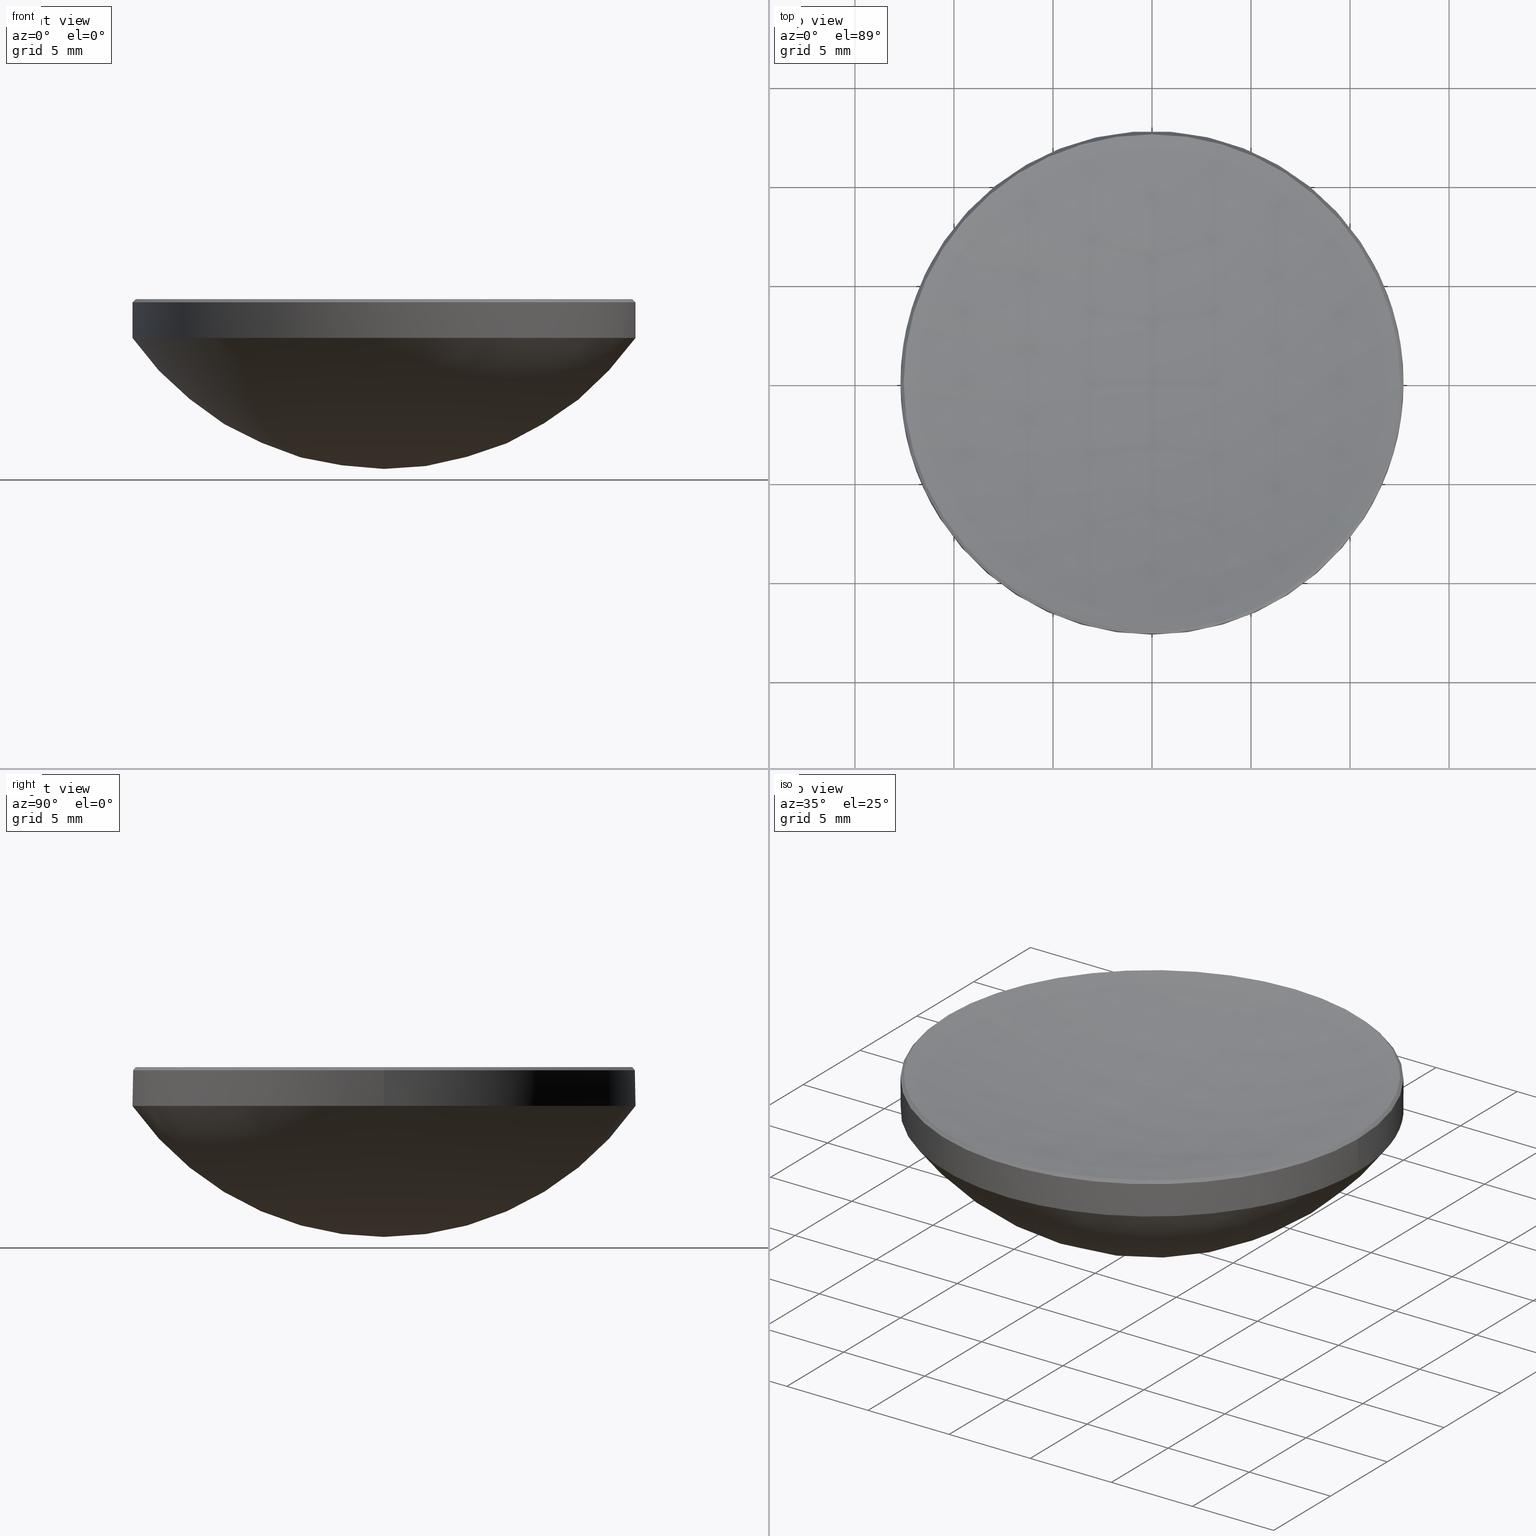
[diagram: canonical four-view strip — front | top / right | iso, engineering-drawing reading convention]
A machine part, canonical four-view strip (front | top / right | iso — engineering-drawing reading convention). The complete STEP part file that produces these views, byte-faithful:
ISO-10303-21;
HEADER;
FILE_DESCRIPTION (( 'STEP AP214' ),
    '1' );
FILE_NAME ('GLM5-025B-050.STEP',
    '2024-08-09T03:08:16',
    ( 'Windows User' ),
    ( 'P R C' ),
    'SwSTEP 2.0',
    'SolidWorks 2022',
    '' );
FILE_SCHEMA (( 'AUTOMOTIVE_DESIGN' ));
ENDSEC;

DATA;
#1 =( NAMED_UNIT ( * ) SI_UNIT ( $, .STERADIAN. ) SOLID_ANGLE_UNIT ( ) );
#2 = EDGE_CURVE ( 'NONE', #99, #150, #180, .T. ) ;
#3 = CARTESIAN_POINT ( 'NONE',  ( -12.69999999999999751, 0.000000000000000000, 10.00000000000000000 ) ) ;
#4 = CIRCLE ( 'NONE', #130, 12.69999999999999751 ) ;
#5 = AXIS2_PLACEMENT_3D ( 'NONE', #217, #23, #215 ) ;
#6 = EDGE_CURVE ( 'NONE', #255, #78, #90, .T. ) ;
#7 = APPLICATION_CONTEXT ( 'automotive_design' ) ;
#8 = ADVANCED_FACE ( 'NONE', ( #144 ), #80, .T. ) ;
#9 =( NAMED_UNIT ( * ) PLANE_ANGLE_UNIT ( ) SI_UNIT ( $, .RADIAN. ) );
#10 = CARTESIAN_POINT ( 'NONE',  ( 0.000000000000000000, 0.000000000000000000, 11.96196640381658227 ) ) ;
#11 = VERTEX_POINT ( 'NONE', #165 ) ;
#12 = LINE ( 'NONE', #211, #276 ) ;
#13 = FACE_OUTER_BOUND ( 'NONE', #146, .T. ) ;
#14 = ORIENTED_EDGE ( 'NONE', *, *, #119, .F. ) ;
#15 = CIRCLE ( 'NONE', #242, 15.49999999999999645 ) ;
#16 = SPHERICAL_SURFACE ( 'NONE', #224, 15.49999999999999645 ) ;
#17 = ORIENTED_EDGE ( 'NONE', *, *, #2, .F. ) ;
#18 = UNCERTAINTY_MEASURE_WITH_UNIT (LENGTH_MEASURE( 1.000000000000000082E-05 ), #63, 'distance_accuracy_value', 'NONE');
#19 = CARTESIAN_POINT ( 'NONE',  ( 0.000000000000000000, 0.000000000000000000, 11.79999999999999716 ) ) ;
#20 = DIRECTION ( 'NONE',  ( -0.000000000000000000, -0.000000000000000000, 1.000000000000000000 ) ) ;
#21 = ORIENTED_EDGE ( 'NONE', *, *, #257, .F. ) ;
#22 = EDGE_CURVE ( 'NONE', #150, #255, #269, .T. ) ;
#23 = DIRECTION ( 'NONE',  ( -0.000000000000000000, -0.000000000000000000, 1.000000000000000000 ) ) ;
#24 = VERTEX_POINT ( 'NONE', #118 ) ;
#25 = FILL_AREA_STYLE ('',( #86 ) ) ;
#26 = APPLICATION_CONTEXT ( 'automotive_design' ) ;
#27 = CARTESIAN_POINT ( 'NONE',  ( 0.000000000000000000, 0.000000000000000000, 10.00000000000000000 ) ) ;
#28 = AXIS2_PLACEMENT_3D ( 'NONE', #182, #49, #72 ) ;
#29 = AXIS2_PLACEMENT_3D ( 'NONE', #234, #82, #127 ) ;
#30 = CARTESIAN_POINT ( 'NONE',  ( 0.000000000000000000, 0.000000000000000000, 20.00000000000000000 ) ) ;
#31 = AXIS2_PLACEMENT_3D ( 'NONE', #19, #138, #223 ) ;
#32 = FACE_OUTER_BOUND ( 'NONE', #175, .T. ) ;
#33 = CARTESIAN_POINT ( 'NONE',  ( -12.69999999999999929, 0.000000000000000000, 11.79999999999999716 ) ) ;
#34 = DIRECTION ( 'NONE',  ( 0.000000000000000000, 1.000000000000000000, 0.000000000000000000 ) ) ;
#35 = ORIENTED_EDGE ( 'NONE', *, *, #213, .T. ) ;
#36 = UNCERTAINTY_MEASURE_WITH_UNIT (LENGTH_MEASURE( 1.000000000000000082E-05 ), #219, 'distance_accuracy_value', 'NONE');
#37 = PRODUCT_DEFINITION_SHAPE ( 'NONE', 'NONE',  #38 ) ;
#38 = PRODUCT_DEFINITION ( 'δ֪', '', #122, #126 ) ;
#39 = CARTESIAN_POINT ( 'NONE',  ( 0.000000000000000000, 0.000000000000000000, 11.96196640381658227 ) ) ;
#40 = ORIENTED_EDGE ( 'NONE', *, *, #280, .F. ) ;
#41 = DIRECTION ( 'NONE',  ( -1.000000000000000000, 0.000000000000000000, 0.000000000000000000 ) ) ;
#42 = ORIENTED_EDGE ( 'NONE', *, *, #119, .T. ) ;
#43 = VECTOR ( 'NONE', #75, 1000.000000000000000 ) ;
#44 = UNCERTAINTY_MEASURE_WITH_UNIT (LENGTH_MEASURE( 1.000000000000000082E-05 ), #113, 'distance_accuracy_value', 'NONE');
#45 =( NAMED_UNIT ( * ) PLANE_ANGLE_UNIT ( ) SI_UNIT ( $, .RADIAN. ) );
#46 = EDGE_CURVE ( 'NONE', #189, #244, #4, .T. ) ;
#47 = STYLED_ITEM ( 'NONE', ( #261 ), #241 ) ;
#48 = APPLICATION_PROTOCOL_DEFINITION ( 'draft international standard', 'automotive_design', 1998, #7 ) ;
#49 = DIRECTION ( 'NONE',  ( 0.000000000000000000, 0.000000000000000000, 1.000000000000000000 ) ) ;
#50 = DIRECTION ( 'NONE',  ( -1.000000000000000000, 0.000000000000000000, 0.000000000000000000 ) ) ;
#51 = DIRECTION ( 'NONE',  ( -0.000000000000000000, -0.000000000000000000, -1.000000000000000000 ) ) ;
#52 = CARTESIAN_POINT ( 'NONE',  ( -12.69999999999999929, 0.000000000000000000, 20.00000000000000000 ) ) ;
#53 = CARTESIAN_POINT ( 'NONE',  ( 0.000000000000000000, 0.000000000000000000, 65.71917720888880865 ) ) ;
#54 = PRESENTATION_STYLE_ASSIGNMENT (( #76 ) ) ;
#55 = EDGE_CURVE ( 'NONE', #230, #57, #231, .T. ) ;
#56 = DIRECTION ( 'NONE',  ( -0.000000000000000000, -0.000000000000000000, 1.000000000000000000 ) ) ;
#57 = VERTEX_POINT ( 'NONE', #250 ) ;
#58 = FACE_OUTER_BOUND ( 'NONE', #169, .T. ) ;
#59 = ORIENTED_EDGE ( 'NONE', *, *, #2, .T. ) ;
#60 = CARTESIAN_POINT ( 'NONE',  ( 0.000000000000000000, 0.000000000000000000, 11.96196640381658227 ) ) ;
#61 = EDGE_LOOP ( 'NONE', ( #81, #139, #166, #129, #253 ) ) ;
#62 = DIRECTION ( 'NONE',  ( -1.000000000000000000, 1.224646799147353207E-16, 0.000000000000000000 ) ) ;
#63 =( LENGTH_UNIT ( ) NAMED_UNIT ( * ) SI_UNIT ( .MILLI., .METRE. ) );
#64 = ORIENTED_EDGE ( 'NONE', *, *, #131, .T. ) ;
#65 = AXIS2_PLACEMENT_3D ( 'NONE', #206, #181, #183 ) ;
#66 = CLOSED_SHELL ( 'NONE', ( #200, #107, #158, #8, #69, #227, #70, #245 ) ) ;
#67 = CARTESIAN_POINT ( 'NONE',  ( 0.000000000000000000, 0.000000000000000000, 18.88594395660922487 ) ) ;
#68 = CIRCLE ( 'NONE', #220, 12.53803359618341418 ) ;
#69 = ADVANCED_FACE ( 'NONE', ( #13 ), #161, .T. ) ;
#70 = ADVANCED_FACE ( 'NONE', ( #32 ), #249, .F. ) ;
#71 = VECTOR ( 'NONE', #51, 1000.000000000000000 ) ;
#72 = DIRECTION ( 'NONE',  ( 1.000000000000000000, 0.000000000000000000, 0.000000000000000000 ) ) ;
#73 = DIRECTION ( 'NONE',  ( -1.000000000000000000, 0.000000000000000000, 0.000000000000000000 ) ) ;
#74 = MECHANICAL_DESIGN_GEOMETRIC_PRESENTATION_REPRESENTATION (  '', ( #204 ), #147 ) ;
#75 = DIRECTION ( 'NONE',  ( -0.000000000000000000, -0.000000000000000000, -1.000000000000000000 ) ) ;
#76 = SURFACE_STYLE_USAGE ( .BOTH. , #185 ) ;
#77 = CARTESIAN_POINT ( 'NONE',  ( 12.69999999999999929, 1.555301434917138433E-15, 11.79999999999999716 ) ) ;
#78 = VERTEX_POINT ( 'NONE', #268 ) ;
#79 = CARTESIAN_POINT ( 'NONE',  ( 0.000000000000000000, 0.000000000000000000, 10.00000000000000000 ) ) ;
#80 = CYLINDRICAL_SURFACE ( 'NONE', #159, 12.69999999999999929 ) ;
#81 = ORIENTED_EDGE ( 'NONE', *, *, #239, .F. ) ;
#82 = DIRECTION ( 'NONE',  ( -1.000000000000000000, 0.000000000000000000, 0.000000000000000000 ) ) ;
#83 = ORIENTED_EDGE ( 'NONE', *, *, #114, .T. ) ;
#84 = DIRECTION ( 'NONE',  ( 0.7071067811865513475, 8.659560562354980929E-17, -0.7071067811865437980 ) ) ;
#85 = EDGE_LOOP ( 'NONE', ( #235, #42, #125, #282 ) ) ;
#86 = FILL_AREA_STYLE_COLOUR ( '', #133 ) ;
#87 = VERTEX_POINT ( 'NONE', #266 ) ;
#88 = DIRECTION ( 'NONE',  ( -1.224646799147353207E-16, -1.000000000000000000, 0.000000000000000000 ) ) ;
#89 = AXIS2_PLACEMENT_3D ( 'NONE', #132, #256, #153 ) ;
#90 = CIRCLE ( 'NONE', #222, 12.69999999999999751 ) ;
#91 = EDGE_CURVE ( 'NONE', #11, #87, #115, .T. ) ;
#92 = DIRECTION ( 'NONE',  ( 0.000000000000000000, 1.000000000000000000, 0.000000000000000000 ) ) ;
#93 = SPHERICAL_SURFACE ( 'NONE', #279, 55.19999999999998863 ) ;
#94 = COLOUR_RGB ( '',1.000000000000000000, 1.000000000000000000, 1.000000000000000000 ) ;
#95 = DIRECTION ( 'NONE',  ( -0.7071067811865513475, 0.000000000000000000, -0.7071067811865437980 ) ) ;
#96 = VECTOR ( 'NONE', #84, 1000.000000000000000 ) ;
#97 = DIRECTION ( 'NONE',  ( -1.000000000000000000, 0.000000000000000000, 0.000000000000000000 ) ) ;
#98 = DIRECTION ( 'NONE',  ( -0.000000000000000000, -0.000000000000000000, 1.000000000000000000 ) ) ;
#99 = VERTEX_POINT ( 'NONE', #77 ) ;
#100 = DIRECTION ( 'NONE',  ( 0.000000000000000000, 0.000000000000000000, -1.000000000000000000 ) ) ;
#101 = ORIENTED_EDGE ( 'NONE', *, *, #55, .T. ) ;
#102 = DIRECTION ( 'NONE',  ( 1.000000000000000000, 0.000000000000000000, 0.000000000000000000 ) ) ;
#103 = CONICAL_SURFACE ( 'NONE', #263, 12.53803359618341418, 0.7853981633974536081 ) ;
#104 = ORIENTED_EDGE ( 'NONE', *, *, #179, .F. ) ;
#105 = FACE_OUTER_BOUND ( 'NONE', #233, .T. ) ;
#106 = ORIENTED_EDGE ( 'NONE', *, *, #280, .T. ) ;
#107 = ADVANCED_FACE ( 'NONE', ( #225 ), #93, .F. ) ;
#108 =( NAMED_UNIT ( * ) SI_UNIT ( $, .STERADIAN. ) SOLID_ANGLE_UNIT ( ) );
#109 = CARTESIAN_POINT ( 'NONE',  ( 0.000000000000000000, 0.000000000000000000, 11.79999999999999716 ) ) ;
#110 = CIRCLE ( 'NONE', #248, 12.69999999999999751 ) ;
#111 = AXIS2_PLACEMENT_3D ( 'NONE', #112, #203, #229 ) ;
#112 = CARTESIAN_POINT ( 'NONE',  ( 0.000000000000000000, 0.000000000000000000, 11.96196640381658227 ) ) ;
#113 =( LENGTH_UNIT ( ) NAMED_UNIT ( * ) SI_UNIT ( .MILLI., .METRE. ) );
#114 = EDGE_CURVE ( 'NONE', #99, #189, #116, .T. ) ;
#115 = CIRCLE ( 'NONE', #111, 12.53803359618341418 ) ;
#116 = LINE ( 'NONE', #120, #43 ) ;
#117 = ADVANCED_BREP_SHAPE_REPRESENTATION ( 'GLM5-025B-050', ( #241, #28 ), #264 ) ;
#118 = CARTESIAN_POINT ( 'NONE',  ( 0.000000000000000000, 3.380025165646693876E-15, 10.51917720888882712 ) ) ;
#119 = EDGE_CURVE ( 'NONE', #24, #11, #270, .T. ) ;
#120 = CARTESIAN_POINT ( 'NONE',  ( 12.69999999999999929, 1.555301434917138433E-15, 20.00000000000000000 ) ) ;
#121 = ORIENTED_EDGE ( 'NONE', *, *, #265, .F. ) ;
#122 = PRODUCT_DEFINITION_FORMATION_WITH_SPECIFIED_SOURCE ( '�κ�', '', #193, .NOT_KNOWN. ) ;
#123 = ORIENTED_EDGE ( 'NONE', *, *, #170, .T. ) ;
#124 = DIRECTION ( 'NONE',  ( 0.000000000000000000, 0.000000000000000000, -1.000000000000000000 ) ) ;
#125 = ORIENTED_EDGE ( 'NONE', *, *, #91, .T. ) ;
#126 = PRODUCT_DEFINITION_CONTEXT ( 'detailed design', #26, 'design' ) ;
#127 = DIRECTION ( 'NONE',  ( 0.000000000000000000, 1.000000000000000000, 0.000000000000000000 ) ) ;
#128 = AXIS2_PLACEMENT_3D ( 'NONE', #39, #124, #281 ) ;
#129 = ORIENTED_EDGE ( 'NONE', *, *, #131, .F. ) ;
#130 = AXIS2_PLACEMENT_3D ( 'NONE', #186, #98, #226 ) ;
#131 = EDGE_CURVE ( 'NONE', #57, #150, #12, .T. ) ;
#132 = CARTESIAN_POINT ( 'NONE',  ( 0.000000000000000000, 0.000000000000000000, 65.71917720888880865 ) ) ;
#133 = COLOUR_RGB ( '',1.000000000000000000, 1.000000000000000000, 1.000000000000000000 ) ;
#134 =( GEOMETRIC_REPRESENTATION_CONTEXT ( 3 ) GLOBAL_UNCERTAINTY_ASSIGNED_CONTEXT ( ( #18 ) ) GLOBAL_UNIT_ASSIGNED_CONTEXT ( ( #63, #45, #1 ) ) REPRESENTATION_CONTEXT ( 'NONE', 'WORKASPACE' ) );
#135 = PRODUCT_CONTEXT ( 'NONE', #7, 'mechanical' ) ;
#136 = APPLICATION_PROTOCOL_DEFINITION ( 'draft international standard', 'automotive_design', 1998, #26 ) ;
#137 = EDGE_CURVE ( 'NONE', #78, #189, #155, .T. ) ;
#138 = DIRECTION ( 'NONE',  ( 0.000000000000000000, 0.000000000000000000, -1.000000000000000000 ) ) ;
#139 = ORIENTED_EDGE ( 'NONE', *, *, #179, .T. ) ;
#140 = MECHANICAL_DESIGN_GEOMETRIC_PRESENTATION_REPRESENTATION (  '', ( #47 ), #134 ) ;
#141 = DIRECTION ( 'NONE',  ( -0.000000000000000000, -0.000000000000000000, -1.000000000000000000 ) ) ;
#142 = SURFACE_STYLE_FILL_AREA ( #272 ) ;
#143 = DIRECTION ( 'NONE',  ( 1.000000000000000000, 0.000000000000000000, 0.000000000000000000 ) ) ;
#144 = FACE_OUTER_BOUND ( 'NONE', #216, .T. ) ;
#145 = CARTESIAN_POINT ( 'NONE',  ( 0.000000000000000000, 0.000000000000000000, 65.71917720888880865 ) ) ;
#146 = EDGE_LOOP ( 'NONE', ( #197, #59, #172, #192, #209 ) ) ;
#147 =( GEOMETRIC_REPRESENTATION_CONTEXT ( 3 ) GLOBAL_UNCERTAINTY_ASSIGNED_CONTEXT ( ( #44 ) ) GLOBAL_UNIT_ASSIGNED_CONTEXT ( ( #113, #9, #207 ) ) REPRESENTATION_CONTEXT ( 'NONE', 'WORKASPACE' ) );
#148 = AXIS2_PLACEMENT_3D ( 'NONE', #145, #50, #34 ) ;
#149 = SURFACE_STYLE_FILL_AREA ( #25 ) ;
#150 = VERTEX_POINT ( 'NONE', #33 ) ;
#151 = DIRECTION ( 'NONE',  ( 1.000000000000000000, 0.000000000000000000, 0.000000000000000000 ) ) ;
#152 = VERTEX_POINT ( 'NONE', #188 ) ;
#153 = DIRECTION ( 'NONE',  ( 0.000000000000000000, 0.000000000000000000, -1.000000000000000000 ) ) ;
#154 = SURFACE_STYLE_USAGE ( .BOTH. , #174 ) ;
#155 = CIRCLE ( 'NONE', #177, 12.69999999999999751 ) ;
#156 = CARTESIAN_POINT ( 'NONE',  ( 0.000000000000000000, 0.000000000000000000, 18.88594395660922487 ) ) ;
#157 = CIRCLE ( 'NONE', #259, 12.69999999999999929 ) ;
#158 = ADVANCED_FACE ( 'NONE', ( #271 ), #16, .T. ) ;
#159 = AXIS2_PLACEMENT_3D ( 'NONE', #243, #228, #73 ) ;
#160 = PRODUCT_RELATED_PRODUCT_CATEGORY ( 'part', '', ( #193 ) ) ;
#161 = CYLINDRICAL_SURFACE ( 'NONE', #267, 12.69999999999999929 ) ;
#162 = DIRECTION ( 'NONE',  ( 1.000000000000000000, 0.000000000000000000, 0.000000000000000000 ) ) ;
#163 = CONICAL_SURFACE ( 'NONE', #128, 12.53803359618341418, 0.7853981633974536081 ) ;
#164 = DIRECTION ( 'NONE',  ( -1.000000000000000000, 0.000000000000000000, 0.000000000000000000 ) ) ;
#165 = CARTESIAN_POINT ( 'NONE',  ( -1.535466271116798629E-15, -12.53803359618340529, 11.96196640381657872 ) ) ;
#166 = ORIENTED_EDGE ( 'NONE', *, *, #213, .F. ) ;
#167 = PRESENTATION_LAYER_ASSIGNMENT (  '', '', ( #47 ) ) ;
#168 = SPHERICAL_SURFACE ( 'NONE', #29, 15.49999999999999645 ) ;
#169 = EDGE_LOOP ( 'NONE', ( #104, #191, #218, #64, #17 ) ) ;
#170 = EDGE_CURVE ( 'NONE', #57, #11, #68, .T. ) ;
#171 = DIRECTION ( 'NONE',  ( 0.000000000000000000, 1.000000000000000000, 0.000000000000000000 ) ) ;
#172 = ORIENTED_EDGE ( 'NONE', *, *, #22, .T. ) ;
#173 = PRESENTATION_LAYER_ASSIGNMENT (  '', '', ( #204 ) ) ;
#174 = SURFACE_SIDE_STYLE ('',( #149 ) ) ;
#175 = EDGE_LOOP ( 'NONE', ( #14, #251, #101, #123 ) ) ;
#176 = DIRECTION ( 'NONE',  ( 0.000000000000000000, 0.000000000000000000, -1.000000000000000000 ) ) ;
#177 = AXIS2_PLACEMENT_3D ( 'NONE', #79, #247, #143 ) ;
#178 =( NAMED_UNIT ( * ) PLANE_ANGLE_UNIT ( ) SI_UNIT ( $, .RADIAN. ) );
#179 = EDGE_CURVE ( 'NONE', #87, #99, #277, .T. ) ;
#180 = CIRCLE ( 'NONE', #31, 12.69999999999999929 ) ;
#181 = DIRECTION ( 'NONE',  ( -1.000000000000000000, 1.224646799147353207E-16, 0.000000000000000000 ) ) ;
#182 = CARTESIAN_POINT ( 'NONE',  ( 0.000000000000000000, 0.000000000000000000, 0.000000000000000000 ) ) ;
#183 = DIRECTION ( 'NONE',  ( -1.224646799147353207E-16, -1.000000000000000000, 0.000000000000000000 ) ) ;
#184 = EDGE_LOOP ( 'NONE', ( #121, #212, #278, #40 ) ) ;
#185 = SURFACE_SIDE_STYLE ('',( #142 ) ) ;
#186 = CARTESIAN_POINT ( 'NONE',  ( 0.000000000000000000, 0.000000000000000000, 10.00000000000000000 ) ) ;
#187 = CIRCLE ( 'NONE', #89, 55.19999999999998863 ) ;
#188 = CARTESIAN_POINT ( 'NONE',  ( 0.000000000000000000, 9.491012693391985815E-16, 3.385943956609228422 ) ) ;
#189 = VERTEX_POINT ( 'NONE', #238 ) ;
#190 = CARTESIAN_POINT ( 'NONE',  ( 0.000000000000000000, 0.000000000000000000, 18.88594395660922487 ) ) ;
#191 = ORIENTED_EDGE ( 'NONE', *, *, #91, .F. ) ;
#192 = ORIENTED_EDGE ( 'NONE', *, *, #6, .T. ) ;
#193 = PRODUCT ( 'GLM5-025B-050', 'GLM5-025B-050', '', ( #135 ) ) ;
#194 = DIRECTION ( 'NONE',  ( -1.000000000000000000, 0.000000000000000000, 0.000000000000000000 ) ) ;
#195 = ORIENTED_EDGE ( 'NONE', *, *, #265, .T. ) ;
#196 = DIRECTION ( 'NONE',  ( 0.000000000000000000, 0.000000000000000000, -1.000000000000000000 ) ) ;
#197 = ORIENTED_EDGE ( 'NONE', *, *, #114, .F. ) ;
#198 = DIRECTION ( 'NONE',  ( 1.000000000000000000, -0.000000000000000000, 0.000000000000000000 ) ) ;
#199 = CARTESIAN_POINT ( 'NONE',  ( 0.000000000000000000, 12.53803359618340529, 11.96196640381657872 ) ) ;
#200 = ADVANCED_FACE ( 'NONE', ( #254 ), #103, .T. ) ;
#201 = AXIS2_PLACEMENT_3D ( 'NONE', #67, #62, #88 ) ;
#202 = DIRECTION ( 'NONE',  ( -0.000000000000000000, -0.000000000000000000, 1.000000000000000000 ) ) ;
#203 = DIRECTION ( 'NONE',  ( -0.000000000000000000, -0.000000000000000000, 1.000000000000000000 ) ) ;
#204 = STYLED_ITEM ( 'NONE', ( #54 ), #117 ) ;
#205 = FILL_AREA_STYLE_COLOUR ( '', #94 ) ;
#206 = CARTESIAN_POINT ( 'NONE',  ( 0.000000000000000000, 0.000000000000000000, 65.71917720888880865 ) ) ;
#207 =( NAMED_UNIT ( * ) SI_UNIT ( $, .STERADIAN. ) SOLID_ANGLE_UNIT ( ) );
#208 = DIRECTION ( 'NONE',  ( 1.000000000000000000, 0.000000000000000000, 0.000000000000000000 ) ) ;
#209 = ORIENTED_EDGE ( 'NONE', *, *, #137, .T. ) ;
#210 = CIRCLE ( 'NONE', #201, 15.49999999999999645 ) ;
#211 = CARTESIAN_POINT ( 'NONE',  ( -12.53803359618341418, 0.000000000000000000, 11.96196640381658227 ) ) ;
#212 = ORIENTED_EDGE ( 'NONE', *, *, #257, .T. ) ;
#213 = EDGE_CURVE ( 'NONE', #150, #99, #157, .T. ) ;
#214 = ORIENTED_EDGE ( 'NONE', *, *, #137, .F. ) ;
#215 = DIRECTION ( 'NONE',  ( 1.000000000000000000, 0.000000000000000000, 0.000000000000000000 ) ) ;
#216 = EDGE_LOOP ( 'NONE', ( #35, #83, #258, #106, #274 ) ) ;
#217 = CARTESIAN_POINT ( 'NONE',  ( 0.000000000000000000, 0.000000000000000000, 11.96196640381658227 ) ) ;
#218 = ORIENTED_EDGE ( 'NONE', *, *, #170, .F. ) ;
#219 =( LENGTH_UNIT ( ) NAMED_UNIT ( * ) SI_UNIT ( .MILLI., .METRE. ) );
#220 = AXIS2_PLACEMENT_3D ( 'NONE', #273, #20, #102 ) ;
#221 = SHAPE_DEFINITION_REPRESENTATION ( #37, #117 ) ;
#222 = AXIS2_PLACEMENT_3D ( 'NONE', #246, #202, #162 ) ;
#223 = DIRECTION ( 'NONE',  ( 1.000000000000000000, 0.000000000000000000, 0.000000000000000000 ) ) ;
#224 = AXIS2_PLACEMENT_3D ( 'NONE', #190, #194, #171 ) ;
#225 = FACE_OUTER_BOUND ( 'NONE', #85, .T. ) ;
#226 = DIRECTION ( 'NONE',  ( 1.000000000000000000, 0.000000000000000000, 0.000000000000000000 ) ) ;
#227 = ADVANCED_FACE ( 'NONE', ( #105 ), #168, .T. ) ;
#228 = DIRECTION ( 'NONE',  ( -0.000000000000000000, -0.000000000000000000, -1.000000000000000000 ) ) ;
#229 = DIRECTION ( 'NONE',  ( 1.000000000000000000, 0.000000000000000000, 0.000000000000000000 ) ) ;
#230 = VERTEX_POINT ( 'NONE', #199 ) ;
#231 = CIRCLE ( 'NONE', #240, 12.53803359618341418 ) ;
#232 = CARTESIAN_POINT ( 'NONE',  ( 12.53803359618341418, 1.535466271116799418E-15, 11.96196640381658227 ) ) ;
#233 = EDGE_LOOP ( 'NONE', ( #21, #195, #275, #214 ) ) ;
#234 = CARTESIAN_POINT ( 'NONE',  ( 0.000000000000000000, 0.000000000000000000, 18.88594395660922487 ) ) ;
#235 = ORIENTED_EDGE ( 'NONE', *, *, #262, .F. ) ;
#236 = CIRCLE ( 'NONE', #5, 12.53803359618341418 ) ;
#237 = DIRECTION ( 'NONE',  ( 1.000000000000000000, 0.000000000000000000, 0.000000000000000000 ) ) ;
#238 = CARTESIAN_POINT ( 'NONE',  ( 12.69999999999999751, 1.555301434917138235E-15, 10.00000000000000000 ) ) ;
#239 = EDGE_CURVE ( 'NONE', #87, #230, #236, .T. ) ;
#240 = AXIS2_PLACEMENT_3D ( 'NONE', #10, #56, #208 ) ;
#241 = MANIFOLD_SOLID_BREP ( '����1', #66 ) ;
#242 = AXIS2_PLACEMENT_3D ( 'NONE', #156, #198, #176 ) ;
#243 = CARTESIAN_POINT ( 'NONE',  ( 0.000000000000000000, 0.000000000000000000, 20.00000000000000000 ) ) ;
#244 = VERTEX_POINT ( 'NONE', #252 ) ;
#245 = ADVANCED_FACE ( 'NONE', ( #58 ), #163, .T. ) ;
#246 = CARTESIAN_POINT ( 'NONE',  ( 0.000000000000000000, 0.000000000000000000, 10.00000000000000000 ) ) ;
#247 = DIRECTION ( 'NONE',  ( -0.000000000000000000, -0.000000000000000000, 1.000000000000000000 ) ) ;
#248 = AXIS2_PLACEMENT_3D ( 'NONE', #27, #260, #237 ) ;
#249 = SPHERICAL_SURFACE ( 'NONE', #148, 55.19999999999998863 ) ;
#250 = CARTESIAN_POINT ( 'NONE',  ( -12.53803359618341418, 0.000000000000000000, 11.96196640381658227 ) ) ;
#251 = ORIENTED_EDGE ( 'NONE', *, *, #262, .T. ) ;
#252 = CARTESIAN_POINT ( 'NONE',  ( 0.000000000000000000, 12.69999999999999574, 10.00000000000000000 ) ) ;
#253 = ORIENTED_EDGE ( 'NONE', *, *, #55, .F. ) ;
#254 = FACE_OUTER_BOUND ( 'NONE', #61, .T. ) ;
#255 = VERTEX_POINT ( 'NONE', #3 ) ;
#256 = DIRECTION ( 'NONE',  ( 1.000000000000000000, 0.000000000000000000, 0.000000000000000000 ) ) ;
#257 = EDGE_CURVE ( 'NONE', #152, #78, #210, .T. ) ;
#258 = ORIENTED_EDGE ( 'NONE', *, *, #46, .T. ) ;
#259 = AXIS2_PLACEMENT_3D ( 'NONE', #109, #196, #151 ) ;
#260 = DIRECTION ( 'NONE',  ( -0.000000000000000000, -0.000000000000000000, 1.000000000000000000 ) ) ;
#261 = PRESENTATION_STYLE_ASSIGNMENT (( #154 ) ) ;
#262 = EDGE_CURVE ( 'NONE', #24, #230, #187, .T. ) ;
#263 = AXIS2_PLACEMENT_3D ( 'NONE', #60, #100, #41 ) ;
#264 =( GEOMETRIC_REPRESENTATION_CONTEXT ( 3 ) GLOBAL_UNCERTAINTY_ASSIGNED_CONTEXT ( ( #36 ) ) GLOBAL_UNIT_ASSIGNED_CONTEXT ( ( #219, #178, #108 ) ) REPRESENTATION_CONTEXT ( 'NONE', 'WORKASPACE' ) );
#265 = EDGE_CURVE ( 'NONE', #152, #244, #15, .T. ) ;
#266 = CARTESIAN_POINT ( 'NONE',  ( 12.53803359618341418, 1.545383853016968925E-15, 11.96196640381658227 ) ) ;
#267 = AXIS2_PLACEMENT_3D ( 'NONE', #30, #141, #97 ) ;
#268 = CARTESIAN_POINT ( 'NONE',  ( -1.555301434917138038E-15, -12.69999999999999574, 10.00000000000000000 ) ) ;
#269 = LINE ( 'NONE', #52, #71 ) ;
#270 = CIRCLE ( 'NONE', #65, 55.19999999999998863 ) ;
#271 = FACE_OUTER_BOUND ( 'NONE', #184, .T. ) ;
#272 = FILL_AREA_STYLE ('',( #205 ) ) ;
#273 = CARTESIAN_POINT ( 'NONE',  ( 0.000000000000000000, 0.000000000000000000, 11.96196640381658227 ) ) ;
#274 = ORIENTED_EDGE ( 'NONE', *, *, #22, .F. ) ;
#275 = ORIENTED_EDGE ( 'NONE', *, *, #46, .F. ) ;
#276 = VECTOR ( 'NONE', #95, 1000.000000000000000 ) ;
#277 = LINE ( 'NONE', #232, #96 ) ;
#278 = ORIENTED_EDGE ( 'NONE', *, *, #6, .F. ) ;
#279 = AXIS2_PLACEMENT_3D ( 'NONE', #53, #164, #92 ) ;
#280 = EDGE_CURVE ( 'NONE', #244, #255, #110, .T. ) ;
#281 = DIRECTION ( 'NONE',  ( -1.000000000000000000, 0.000000000000000000, 0.000000000000000000 ) ) ;
#282 = ORIENTED_EDGE ( 'NONE', *, *, #239, .T. ) ;
ENDSEC;
END-ISO-10303-21;
